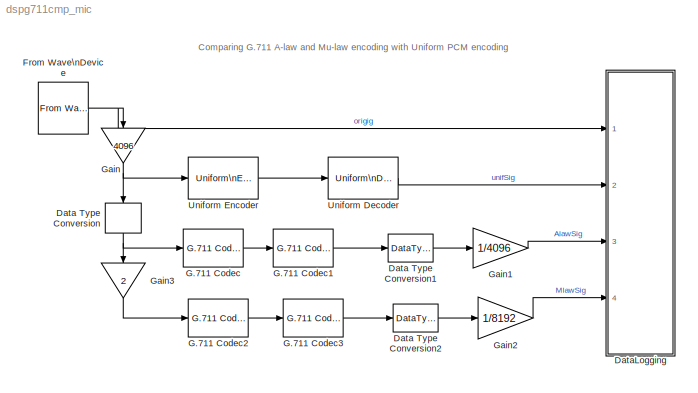
MODEL dspg711cmp_mic
KIND model
CONFIG AbsTol = auto
CONFIG FixedStep = auto
CONFIG MaxStep = auto
CONFIG MinStep = auto
CONFIG PreLoadFcn = frmSize=256;
CONFIG RelTol = 1e-3
CONFIG Solver = FixedStepDiscrete
CONFIG SolverMode = Auto
CONFIG StartTime = 0.0
CONFIG StopTime = 10
BLOCK [DataTypeConversion] Data Type Conversion
  OutDataTypeMode = int16
BLOCK [DataTypeConversion] Data Type Conversion1
  OutDataTypeMode = double
BLOCK [DataTypeConversion] Data Type Conversion2
  OutDataTypeMode = double
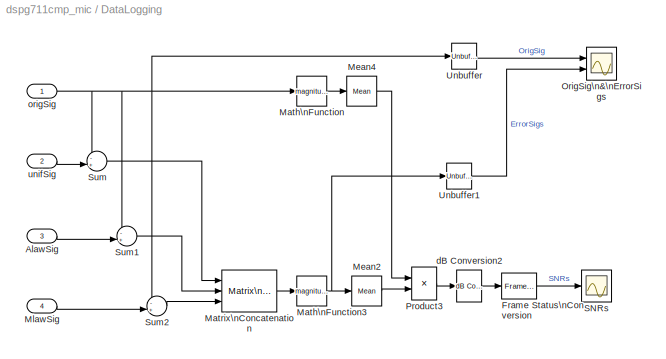
BLOCK [SubSystem] DataLogging
  Ports = [4]
  TreatAsAtomicUnit = off
BLOCK [Inport] DataLogging/AlawSig
  Port = 3
BLOCK [Reference] DataLogging/Frame Status\nConversion  REF=dspsigattribs/Frame Status\nConversion
  Ports = [1, 1]
  SourceBlock = dspsigattribs/Frame Status\nConversion
  SourceType = Frame Status Conversion
  growRefPort = off
  outframe = Sample-based
BLOCK [Math] DataLogging/Math\nFunction
  Operator = magnitude^2
  Ports = [1, 1]
BLOCK [Math] DataLogging/Math\nFunction3
  Operator = magnitude^2
  Ports = [1, 1]
BLOCK [Reference] DataLogging/Matrix\nConcatenation  REF=simulink/Math\nOperations/Matrix\nConcatenation
  Ports = [3, 1]
  SourceBlock = simulink/Math\nOperations/Matrix\nConcatenation
  SourceType = Matrix Concatenation
  catMethod = Horizontal
  numInports = 3
BLOCK [Reference] DataLogging/Mean2  REF=dspstat3/Mean
  Ports = [1, 1]
  SourceBlock = dspstat3/Mean
  SourceType = Mean
  reset_popup = None
  run = off
BLOCK [Reference] DataLogging/Mean4  REF=dspstat3/Mean
  Ports = [1, 1]
  SourceBlock = dspstat3/Mean
  SourceType = Mean
  reset_popup = None
  run = off
BLOCK [Inport] DataLogging/MlawSig
  Port = 4
BLOCK [Scope] DataLogging/OrigSig\n&\nErrorSigs
  DataFormat = StructureWithTime
  MaxDataPoints = 80000
  NumInputPorts = 2
  Ports = [2]
  SaveName = ScopeData1
  TimeRange = 10
  YMax = 1.2~0.00045
  YMin = -1.2~0
BLOCK [Product] DataLogging/Product3
  Inputs = */
  Ports = [2, 1]
BLOCK [Scope] DataLogging/SNRs
  DataFormat = StructureWithTime
  NumInputPorts = 1
  Ports = [1]
  TimeRange = 10
  YMax = 50
  YMin = 0
BLOCK [Sum] DataLogging/Sum
  IconShape = round
  Inputs = -+|
  Ports = [2, 1]
BLOCK [Sum] DataLogging/Sum1
  IconShape = round
  Inputs = -+|
  Ports = [2, 1]
BLOCK [Sum] DataLogging/Sum2
  IconShape = round
  Inputs = -+|
  Ports = [2, 1]
BLOCK [Reference] DataLogging/Unbuffer  REF=dspbuff3/Unbuffer
  Ports = [1, 1]
  SourceBlock = dspbuff3/Unbuffer
  SourceType = Unbuffer
  ic = 0
BLOCK [Reference] DataLogging/Unbuffer1  REF=dspbuff3/Unbuffer
  Ports = [1, 1]
  SourceBlock = dspbuff3/Unbuffer
  SourceType = Unbuffer
  ic = 0
BLOCK [Reference] DataLogging/dB Conversion2  REF=dspmathops/dB Conversion
  Ports = [1, 1]
  R = 1
  SourceBlock = dspmathops/dB Conversion
  SourceType = dB Conversion
  dBtype = dB
  fuzz = on
  intype = Power
BLOCK [Inport] DataLogging/origSig
BLOCK [Inport] DataLogging/unifSig
  Port = 2
BLOCK [Reference] From Wave\nDevice  REF=dspwin32/From Wave\nDevice
  Ports = [0, 1]
  QueueDuration = 3
  SampleRate = 8000
  SampleWidth = 16
  SamplesPerFrame = frmSize
  SourceBlock = dspwin32/From Wave\nDevice
  SourceType = From Wave Device
  Stereo = off
  UserRate = 16000
  dType = Double
  useDefaultDevice = on
BLOCK [Reference] G.711 Codec  REF=dspquant2/G.711 Codec
  Ports = [1, 1]
  SourceBlock = dspquant2/G.711 Codec
  SourceType = G.711
  errmode = Warning
  mode = Encode PCM to A-law
BLOCK [Reference] G.711 Codec1  REF=dspquant2/G.711 Codec
  Ports = [1, 1]
  SourceBlock = dspquant2/G.711 Codec
  SourceType = G.711
  errmode = Warning
  mode = Decode A-law to PCM
BLOCK [Reference] G.711 Codec2  REF=dspquant2/G.711 Codec
  Ports = [1, 1]
  SourceBlock = dspquant2/G.711 Codec
  SourceType = G.711
  errmode = Warning
  mode = Encode PCM to mu-law
BLOCK [Reference] G.711 Codec3  REF=dspquant2/G.711 Codec
  Ports = [1, 1]
  SourceBlock = dspquant2/G.711 Codec
  SourceType = G.711
  errmode = Warning
  mode = Decode mu-law to PCM
BLOCK [Gain] Gain
  Gain = 4096
BLOCK [Gain] Gain1
  Gain = 1/4096
BLOCK [Gain] Gain2
  Gain = 1/8192
BLOCK [Gain] Gain3
  Gain = 2
BLOCK [Reference] Uniform Decoder  REF=dspquant2/Uniform\nDecoder
  Ports = [1, 1]
  SourceBlock = dspquant2/Uniform\nDecoder
  SourceType = Uniform Decoder
  bits = 8
  otype = Double
  overflowMode = Saturate
  peak = 1
BLOCK [Reference] Uniform Encoder  REF=dspquant2/Uniform\nEncoder
  Ports = [1, 1]
  SourceBlock = dspquant2/Uniform\nEncoder
  SourceType = Uniform Encoder
  bits = 8
  otype = Signed integer
  peak = 4096
ANNOTATION (root): Comparing G.711 A-law and Mu-law encoding with Uniform PCM encoding
LINE Data Type Conversion1:1 -> Gain1:1
LINE Data Type Conversion2:1 -> Gain2:1
NET Data Type Conversion:1 -> G.711 Codec:1, Gain3:1
LINE DataLogging/AlawSig:1 -> DataLogging/Sum1:2
LINE DataLogging/Frame Status\nConversion:1 -> DataLogging/SNRs:1
NET DataLogging/Math\nFunction3:1 -> DataLogging/Mean2:1, DataLogging/Unbuffer1:1
LINE DataLogging/Math\nFunction:1 -> DataLogging/Mean4:1
LINE DataLogging/Matrix\nConcatenation:1 -> DataLogging/Math\nFunction3:1
LINE DataLogging/Mean2:1 -> DataLogging/Product3:2
LINE DataLogging/Mean4:1 -> DataLogging/Product3:1
LINE DataLogging/MlawSig:1 -> DataLogging/Sum2:2
LINE DataLogging/Product3:1 -> DataLogging/dB Conversion2:1
LINE DataLogging/Sum1:1 -> DataLogging/Matrix\nConcatenation:2
LINE DataLogging/Sum2:1 -> DataLogging/Matrix\nConcatenation:3
LINE DataLogging/Sum:1 -> DataLogging/Matrix\nConcatenation:1
LINE DataLogging/Unbuffer1:1 -> DataLogging/OrigSig\n&\nErrorSigs:2
LINE DataLogging/Unbuffer:1 -> DataLogging/OrigSig\n&\nErrorSigs:1
LINE DataLogging/dB Conversion2:1 -> DataLogging/Frame Status\nConversion:1
NET DataLogging/origSig:1 -> DataLogging/Math\nFunction:1, DataLogging/Sum1:1, DataLogging/Sum2:1, DataLogging/Sum:1, DataLogging/Unbuffer:1
LINE DataLogging/unifSig:1 -> DataLogging/Sum:2
NET From Wave\nDevice:1 -> DataLogging:1, Gain:1
LINE G.711 Codec1:1 -> Data Type Conversion1:1
LINE G.711 Codec2:1 -> G.711 Codec3:1
LINE G.711 Codec3:1 -> Data Type Conversion2:1
LINE G.711 Codec:1 -> G.711 Codec1:1
LINE Gain1:1 -> DataLogging:3
LINE Gain2:1 -> DataLogging:4
LINE Gain3:1 -> G.711 Codec2:1
NET Gain:1 -> Data Type Conversion:1, Uniform Encoder:1
LINE Uniform Decoder:1 -> DataLogging:2
LINE Uniform Encoder:1 -> Uniform Decoder:1
note: NET lines group one-source signal fan-out (src -> all destinations, sorted); 1:1 wires keep LINE
